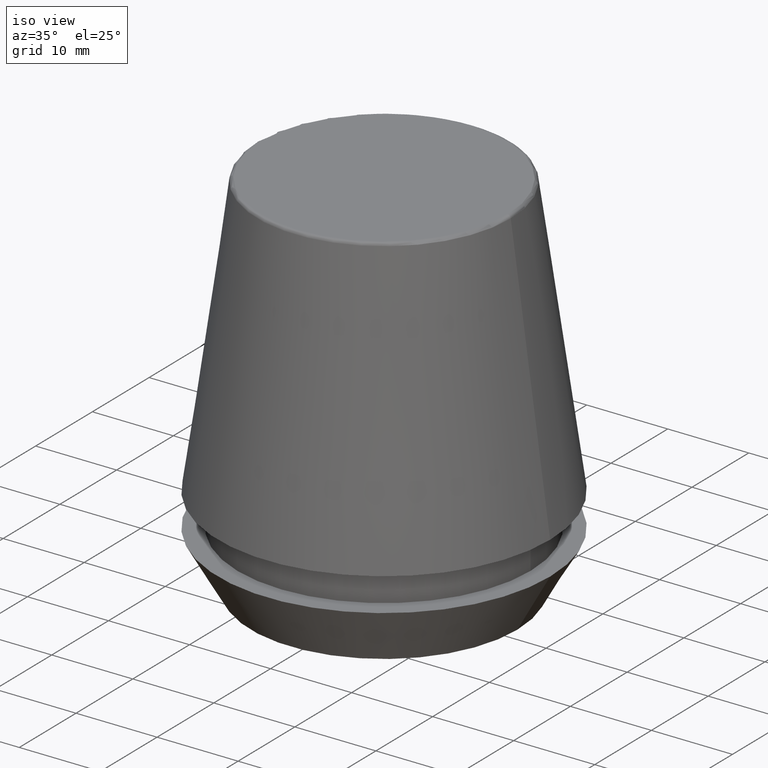
[diagram: clean part render]
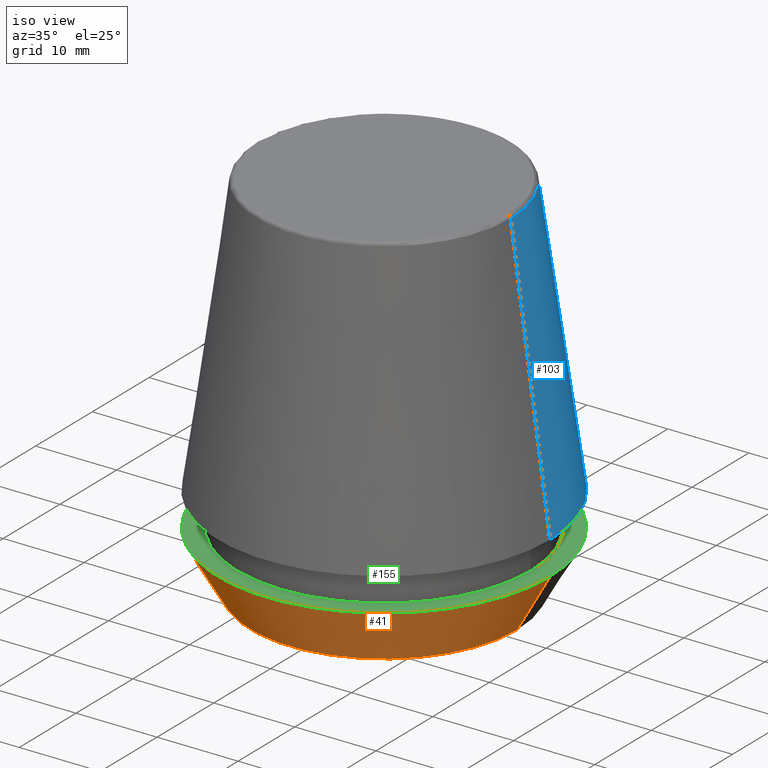
[diagram: same view with three faces highlighted in distinct colors, each labeled with its STEP entity id]
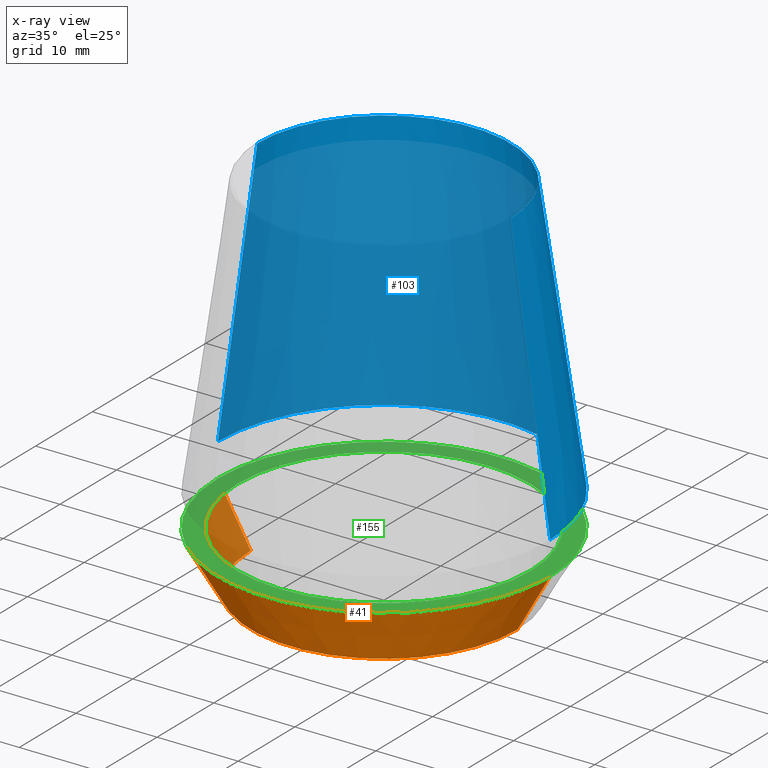
[diagram: x-ray of the same camera — body ghosted, the three highlighted faces saturated]
A machine part, iso view with three faces highlighted in distinct colors.
The next image is the same camera in x-ray (body ghosted, the three faces saturated) — at least one of them is partly hidden behind the body in this view.
Their STEP definitions:

[orange] entity #41 — the highlighted conical surface has half-angle 30 deg.
#15 = VERTEX_POINT ( 'NONE', #368 ) ;
#24 = EDGE_CURVE ( 'NONE', #51, #120, #93, .T. ) ;
#31 = VECTOR ( 'NONE', #138, 1000.000000000000000 ) ;
#33 = DIRECTION ( 'NONE',  ( -0.0000000000000000000, -0.0000000000000000000, 1.000000000000000000 ) ) ;
#41 = ADVANCED_FACE ( 'NONE', ( #121 ), #320, .T. ) ;
#45 = EDGE_CURVE ( 'NONE', #307, #120, #317, .T. ) ;
#51 = VERTEX_POINT ( 'NONE', #90 ) ;
#58 = EDGE_CURVE ( 'NONE', #15, #51, #130, .T. ) ;
#63 = EDGE_CURVE ( 'NONE', #15, #307, #310, .T. ) ;
#65 = DIRECTION ( 'NONE',  ( 1.000000000000000000, 0.0000000000000000000, 0.0000000000000000000 ) ) ;
#90 = CARTESIAN_POINT ( 'NONE',  ( -20.50000000000000000, 2.510525938252074100E-015, 7.000000000000006200 ) ) ;
#93 = CIRCLE ( 'NONE', #325, 20.50000000000000000 ) ;
#109 = DIRECTION ( 'NONE',  ( 1.000000000000000000, 0.0000000000000000000, 0.0000000000000000000 ) ) ;
#112 = CARTESIAN_POINT ( 'NONE',  ( -16.45854811567268100, 2.015590826847124800E-015, 0.0000000000000000000 ) ) ;
#120 = VERTEX_POINT ( 'NONE', #284 ) ;
#121 = FACE_OUTER_BOUND ( 'NONE', #209, .T. ) ;
#130 = LINE ( 'NONE', #112, #309 ) ;
#138 = DIRECTION ( 'NONE',  ( 0.4999999999999941700, 0.0000000000000000000, 0.8660254037844420400 ) ) ;
#140 = CARTESIAN_POINT ( 'NONE',  ( 0.0000000000000000000, 0.0000000000000000000, 0.0000000000000000000 ) ) ;
#171 = ORIENTED_EDGE ( 'NONE', *, *, #24, .F. ) ;
#193 = CARTESIAN_POINT ( 'NONE',  ( 16.45854811567268100, 0.0000000000000000000, 0.0000000000000000000 ) ) ;
#209 = EDGE_LOOP ( 'NONE', ( #387, #351, #363, #171 ) ) ;
#240 = DIRECTION ( 'NONE',  ( -0.0000000000000000000, -0.0000000000000000000, 1.000000000000000000 ) ) ;
#266 = CARTESIAN_POINT ( 'NONE',  ( 0.0000000000000000000, 0.0000000000000000000, 0.0000000000000000000 ) ) ;
#284 = CARTESIAN_POINT ( 'NONE',  ( 20.50000000000000000, 0.0000000000000000000, 7.000000000000006200 ) ) ;
#288 = DIRECTION ( 'NONE',  ( -0.0000000000000000000, -0.0000000000000000000, 1.000000000000000000 ) ) ;
#307 = VERTEX_POINT ( 'NONE', #385 ) ;
#309 = VECTOR ( 'NONE', #359, 1000.000000000000000 ) ;
#310 = CIRCLE ( 'NONE', #384, 16.45854811567268100 ) ;
#317 = LINE ( 'NONE', #193, #31 ) ;
#320 = CONICAL_SURFACE ( 'NONE', #377, 16.45854811567268100, 0.5235987755982921500 ) ;
#325 = AXIS2_PLACEMENT_3D ( 'NONE', #369, #240, #337 ) ;
#337 = DIRECTION ( 'NONE',  ( 1.000000000000000000, 0.0000000000000000000, 0.0000000000000000000 ) ) ;
#351 = ORIENTED_EDGE ( 'NONE', *, *, #63, .T. ) ;
#359 = DIRECTION ( 'NONE',  ( -0.4999999999999941700, 6.123233995736694500E-017, 0.8660254037844420400 ) ) ;
#363 = ORIENTED_EDGE ( 'NONE', *, *, #45, .T. ) ;
#368 = CARTESIAN_POINT ( 'NONE',  ( -16.45854811567268100, 2.263058382549599700E-015, 0.0000000000000000000 ) ) ;
#369 = CARTESIAN_POINT ( 'NONE',  ( 0.0000000000000000000, 0.0000000000000000000, 7.000000000000006200 ) ) ;
#377 = AXIS2_PLACEMENT_3D ( 'NONE', #140, #33, #65 ) ;
#384 = AXIS2_PLACEMENT_3D ( 'NONE', #266, #288, #109 ) ;
#385 = CARTESIAN_POINT ( 'NONE',  ( 16.45854811567268100, 0.0000000000000000000, 0.0000000000000000000 ) ) ;
#387 = ORIENTED_EDGE ( 'NONE', *, *, #58, .F. ) ;

[blue] entity #103 — the highlighted conical surface has half-angle 8 deg.
#9 = EDGE_LOOP ( 'NONE', ( #336, #349, #170, #177 ) ) ;
#17 = AXIS2_PLACEMENT_3D ( 'NONE', #218, #278, #174 ) ;
#54 = CARTESIAN_POINT ( 'NONE',  ( 0.0000000000000000000, 0.0000000000000000000, 11.09999999999999800 ) ) ;
#59 = CARTESIAN_POINT ( 'NONE',  ( 0.0000000000000000000, 0.0000000000000000000, 45.65566924038402900 ) ) ;
#61 = DIRECTION ( 'NONE',  ( -0.0000000000000000000, -0.0000000000000000000, 1.000000000000000000 ) ) ;
#73 = EDGE_CURVE ( 'NONE', #89, #318, #329, .T. ) ;
#83 = DIRECTION ( 'NONE',  ( -1.000000000000000000, 0.0000000000000000000, 0.0000000000000000000 ) ) ;
#89 = VERTEX_POINT ( 'NONE', #227 ) ;
#100 = CARTESIAN_POINT ( 'NONE',  ( 20.50032537154048700, 2.510565784773633700E-015, 11.09999999999999800 ) ) ;
#103 = ADVANCED_FACE ( 'NONE', ( #302 ), #279, .T. ) ;
#104 = CARTESIAN_POINT ( 'NONE',  ( 20.50032537154048700, 2.510565784773633700E-015, 11.09999999999999800 ) ) ;
#105 = DIRECTION ( 'NONE',  ( 0.0000000000000000000, 0.0000000000000000000, -1.000000000000000000 ) ) ;
#152 = AXIS2_PLACEMENT_3D ( 'NONE', #54, #105, #83 ) ;
#159 = CARTESIAN_POINT ( 'NONE',  ( -20.50032537154048700, 0.0000000000000000000, 11.09999999999999800 ) ) ;
#167 = CARTESIAN_POINT ( 'NONE',  ( -20.50032537154048700, 0.0000000000000000000, 11.09999999999999800 ) ) ;
#170 = ORIENTED_EDGE ( 'NONE', *, *, #339, .T. ) ;
#174 = DIRECTION ( 'NONE',  ( 1.000000000000000000, 0.0000000000000000000, 0.0000000000000000000 ) ) ;
#177 = ORIENTED_EDGE ( 'NONE', *, *, #270, .F. ) ;
#181 = DIRECTION ( 'NONE',  ( 0.1391731009600587200, 1.704378926181473400E-017, -0.9902680687415712500 ) ) ;
#212 = VERTEX_POINT ( 'NONE', #159 ) ;
#218 = CARTESIAN_POINT ( 'NONE',  ( 0.0000000000000000000, 0.0000000000000000000, 11.09999999999999800 ) ) ;
#219 = AXIS2_PLACEMENT_3D ( 'NONE', #59, #61, #328 ) ;
#224 = EDGE_CURVE ( 'NONE', #89, #319, #295, .T. ) ;
#227 = CARTESIAN_POINT ( 'NONE',  ( 15.64384277279740400, 2.213191991290356800E-015, 45.65566924038402900 ) ) ;
#263 = VECTOR ( 'NONE', #379, 1000.000000000000000 ) ;
#270 = EDGE_CURVE ( 'NONE', #318, #212, #274, .T. ) ;
#274 = LINE ( 'NONE', #167, #263 ) ;
#278 = DIRECTION ( 'NONE',  ( -0.0000000000000000000, -0.0000000000000000000, 1.000000000000000000 ) ) ;
#279 = CONICAL_SURFACE ( 'NONE', #152, 20.50032537154048700, 0.1396263401595396200 ) ;
#289 = VECTOR ( 'NONE', #181, 1000.000000000000000 ) ;
#295 = LINE ( 'NONE', #100, #289 ) ;
#302 = FACE_OUTER_BOUND ( 'NONE', #9, .T. ) ;
#318 = VERTEX_POINT ( 'NONE', #354 ) ;
#319 = VERTEX_POINT ( 'NONE', #104 ) ;
#328 = DIRECTION ( 'NONE',  ( 1.000000000000000000, 0.0000000000000000000, 0.0000000000000000000 ) ) ;
#329 = CIRCLE ( 'NONE', #219, 15.64384277279740400 ) ;
#336 = ORIENTED_EDGE ( 'NONE', *, *, #73, .F. ) ;
#339 = EDGE_CURVE ( 'NONE', #319, #212, #345, .T. ) ;
#345 = CIRCLE ( 'NONE', #17, 20.50032537154048700 ) ;
#349 = ORIENTED_EDGE ( 'NONE', *, *, #224, .T. ) ;
#354 = CARTESIAN_POINT ( 'NONE',  ( -15.64384277279740400, 0.0000000000000000000, 45.65566924038402900 ) ) ;
#379 = DIRECTION ( 'NONE',  ( -0.1391731009600587200, 0.0000000000000000000, -0.9902680687415712500 ) ) ;

[green] entity #155 — the highlighted planar face has unit normal (0, 0, -1).
#1 = DIRECTION ( 'NONE',  ( 1.000000000000000000, 0.0000000000000000000, 0.0000000000000000000 ) ) ;
#20 = ORIENTED_EDGE ( 'NONE', *, *, #313, .F. ) ;
#21 = CARTESIAN_POINT ( 'NONE',  ( 0.0000000000000000000, 20.50000000000000000, 7.000000000000002700 ) ) ;
#23 = PLANE ( 'NONE',  #251 ) ;
#24 = EDGE_CURVE ( 'NONE', #51, #120, #93, .T. ) ;
#25 = AXIS2_PLACEMENT_3D ( 'NONE', #352, #234, #27 ) ;
#27 = DIRECTION ( 'NONE',  ( 1.000000000000000000, 0.0000000000000000000, 0.0000000000000000000 ) ) ;
#29 = EDGE_CURVE ( 'NONE', #207, #149, #353, .T. ) ;
#37 = ORIENTED_EDGE ( 'NONE', *, *, #255, .T. ) ;
#51 = VERTEX_POINT ( 'NONE', #90 ) ;
#74 = ORIENTED_EDGE ( 'NONE', *, *, #29, .F. ) ;
#90 = CARTESIAN_POINT ( 'NONE',  ( -20.50000000000000000, 2.510525938252074100E-015, 7.000000000000006200 ) ) ;
#93 = CIRCLE ( 'NONE', #325, 20.50000000000000000 ) ;
#111 = AXIS2_PLACEMENT_3D ( 'NONE', #184, #222, #373 ) ;
#114 = CARTESIAN_POINT ( 'NONE',  ( 0.0000000000000000000, 0.0000000000000000000, 6.999999999999999100 ) ) ;
#120 = VERTEX_POINT ( 'NONE', #284 ) ;
#123 = EDGE_LOOP ( 'NONE', ( #74, #20 ) ) ;
#126 = CARTESIAN_POINT ( 'NONE',  ( -18.10000000000000100, 2.216610706456709600E-015, 6.999999999999999100 ) ) ;
#141 = EDGE_LOOP ( 'NONE', ( #37, #236 ) ) ;
#149 = VERTEX_POINT ( 'NONE', #126 ) ;
#155 = ADVANCED_FACE ( 'NONE', ( #242, #276 ), #23, .F. ) ;
#182 = CARTESIAN_POINT ( 'NONE',  ( 18.10000000000000100, 0.0000000000000000000, 6.999999999999999100 ) ) ;
#184 = CARTESIAN_POINT ( 'NONE',  ( 0.0000000000000000000, 0.0000000000000000000, 6.999999999999999100 ) ) ;
#207 = VERTEX_POINT ( 'NONE', #182 ) ;
#222 = DIRECTION ( 'NONE',  ( -0.0000000000000000000, -0.0000000000000000000, 1.000000000000000000 ) ) ;
#223 = DIRECTION ( 'NONE',  ( 0.0000000000000000000, 0.0000000000000000000, -1.000000000000000000 ) ) ;
#234 = DIRECTION ( 'NONE',  ( -0.0000000000000000000, -0.0000000000000000000, 1.000000000000000000 ) ) ;
#236 = ORIENTED_EDGE ( 'NONE', *, *, #24, .T. ) ;
#240 = DIRECTION ( 'NONE',  ( -0.0000000000000000000, -0.0000000000000000000, 1.000000000000000000 ) ) ;
#242 = FACE_BOUND ( 'NONE', #123, .T. ) ;
#246 = CIRCLE ( 'NONE', #25, 20.50000000000000000 ) ;
#251 = AXIS2_PLACEMENT_3D ( 'NONE', #21, #223, #312 ) ;
#255 = EDGE_CURVE ( 'NONE', #120, #51, #246, .T. ) ;
#276 = FACE_OUTER_BOUND ( 'NONE', #141, .T. ) ;
#284 = CARTESIAN_POINT ( 'NONE',  ( 20.50000000000000000, 0.0000000000000000000, 7.000000000000006200 ) ) ;
#312 = DIRECTION ( 'NONE',  ( -1.000000000000000000, 0.0000000000000000000, -0.0000000000000000000 ) ) ;
#313 = EDGE_CURVE ( 'NONE', #149, #207, #346, .T. ) ;
#325 = AXIS2_PLACEMENT_3D ( 'NONE', #369, #240, #337 ) ;
#337 = DIRECTION ( 'NONE',  ( 1.000000000000000000, 0.0000000000000000000, 0.0000000000000000000 ) ) ;
#343 = AXIS2_PLACEMENT_3D ( 'NONE', #114, #344, #1 ) ;
#344 = DIRECTION ( 'NONE',  ( -0.0000000000000000000, -0.0000000000000000000, 1.000000000000000000 ) ) ;
#346 = CIRCLE ( 'NONE', #111, 18.10000000000000100 ) ;
#352 = CARTESIAN_POINT ( 'NONE',  ( 0.0000000000000000000, 0.0000000000000000000, 7.000000000000006200 ) ) ;
#353 = CIRCLE ( 'NONE', #343, 18.10000000000000100 ) ;
#369 = CARTESIAN_POINT ( 'NONE',  ( 0.0000000000000000000, 0.0000000000000000000, 7.000000000000006200 ) ) ;
#373 = DIRECTION ( 'NONE',  ( 1.000000000000000000, 0.0000000000000000000, 0.0000000000000000000 ) ) ;